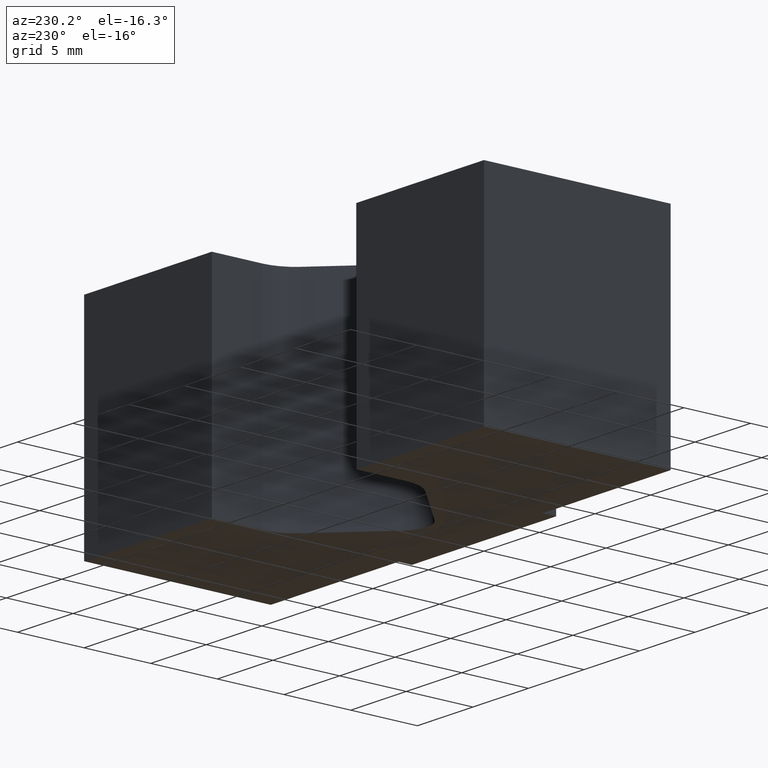
[diagram: clean part render]
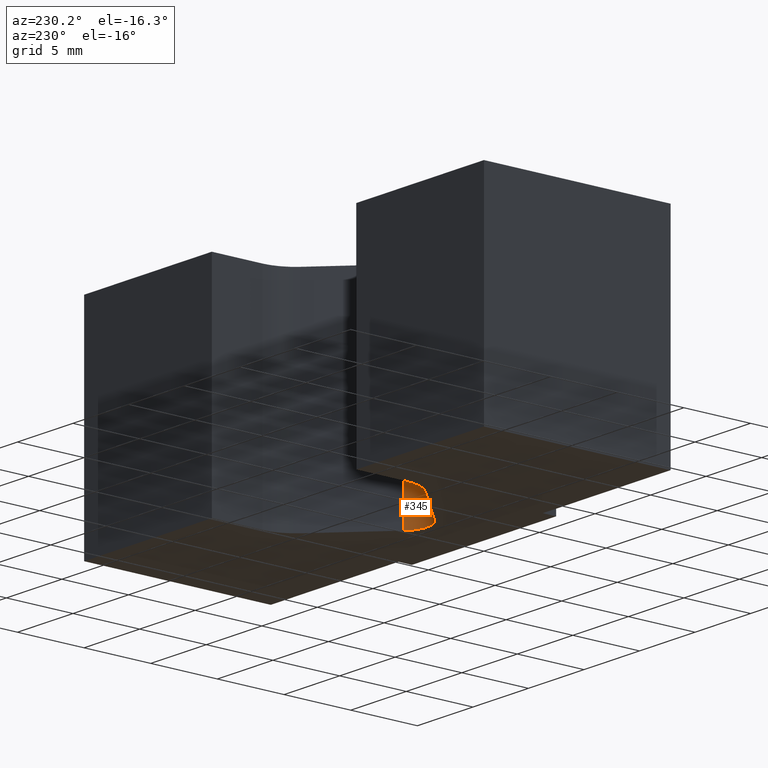
[diagram: same view with one face highlighted and labeled with its STEP entity id]
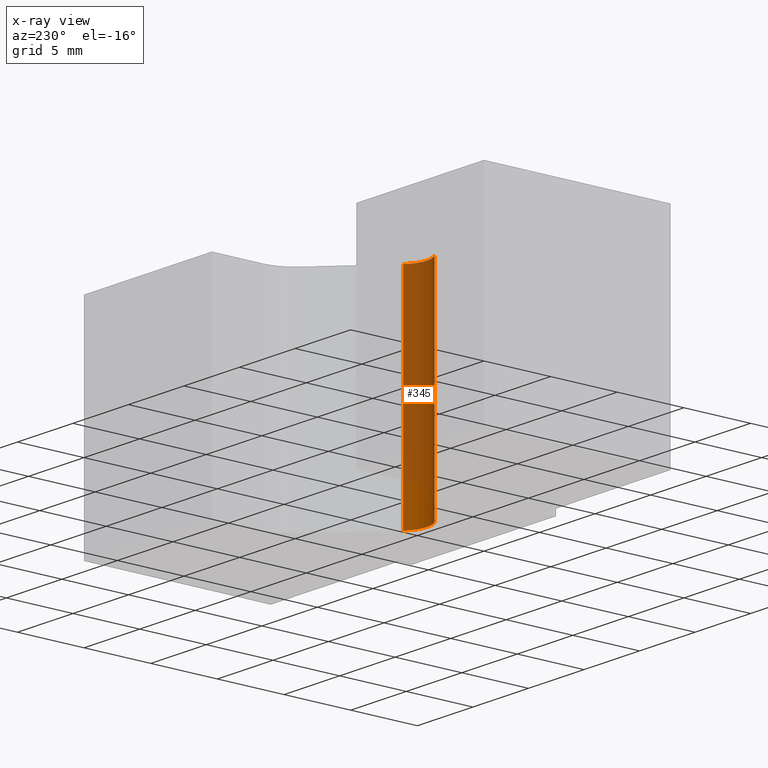
[diagram: x-ray of the same camera — body ghosted, the highlighted face saturated]
A machine part, auxiliary view. The second image highlights one B-rep face of the part: STEP entity #345.
The next image is the same camera in x-ray: the body ghosted, the highlighted face saturated — about 85% of this face is hidden behind the body in this view.
In plain terms, the highlighted cylindrical surface (edge-blend (fillet) strip) has radius 2 mm, axis along (0, 0, 1).
Its self-contained STEP definition (entity closure, byte-faithful):
#16=CYLINDRICAL_SURFACE('',#390,2.);
#28=FACE_OUTER_BOUND('',#46,.T.);
#46=EDGE_LOOP('',(#276,#277,#278,#279));
#55=CIRCLE('',#378,2.);
#58=CIRCLE('',#391,2.);
#90=LINE('',#563,#132);
#91=LINE('',#567,#133);
#132=VECTOR('',#460,10.);
#133=VECTOR('',#465,10.);
#155=VERTEX_POINT('',#515);
#156=VERTEX_POINT('',#517);
#169=VERTEX_POINT('',#561);
#170=VERTEX_POINT('',#565);
#187=EDGE_CURVE('',#156,#155,#55,.T.);
#210=EDGE_CURVE('',#169,#155,#90,.T.);
#211=EDGE_CURVE('',#169,#170,#58,.T.);
#212=EDGE_CURVE('',#170,#156,#91,.T.);
#276=ORIENTED_EDGE('',*,*,#211,.T.);
#277=ORIENTED_EDGE('',*,*,#212,.T.);
#278=ORIENTED_EDGE('',*,*,#187,.T.);
#279=ORIENTED_EDGE('',*,*,#210,.F.);
#345=ADVANCED_FACE('',(#28),#16,.F.);
#378=AXIS2_PLACEMENT_3D('',#518,#416,#417);
#390=AXIS2_PLACEMENT_3D('',#564,#461,#462);
#391=AXIS2_PLACEMENT_3D('',#566,#463,#464);
#416=DIRECTION('center_axis',(0.,0.,-1.));
#417=DIRECTION('ref_axis',(-0.707106781186547,-0.707106781186548,0.));
#460=DIRECTION('',(0.,0.,-1.));
#461=DIRECTION('center_axis',(0.,0.,1.));
#462=DIRECTION('ref_axis',(-0.707106781186547,-0.707106781186548,0.));
#463=DIRECTION('center_axis',(0.,0.,1.));
#464=DIRECTION('ref_axis',(-0.707106781186547,-0.707106781186548,0.));
#465=DIRECTION('',(0.,0.,-1.));
#515=CARTESIAN_POINT('',(-1.4142135623731,4.8857864376269,-8.));
#517=CARTESIAN_POINT('',(1.4142135623731,4.8857864376269,-8.));
#518=CARTESIAN_POINT('Origin',(0.,6.3,-8.));
#561=CARTESIAN_POINT('',(-1.4142135623731,4.8857864376269,8.));
#563=CARTESIAN_POINT('',(-1.4142135623731,4.8857864376269,0.));
#564=CARTESIAN_POINT('Origin',(0.,6.3,0.));
#565=CARTESIAN_POINT('',(1.4142135623731,4.8857864376269,8.));
#566=CARTESIAN_POINT('Origin',(0.,6.3,8.));
#567=CARTESIAN_POINT('',(1.4142135623731,4.8857864376269,0.));